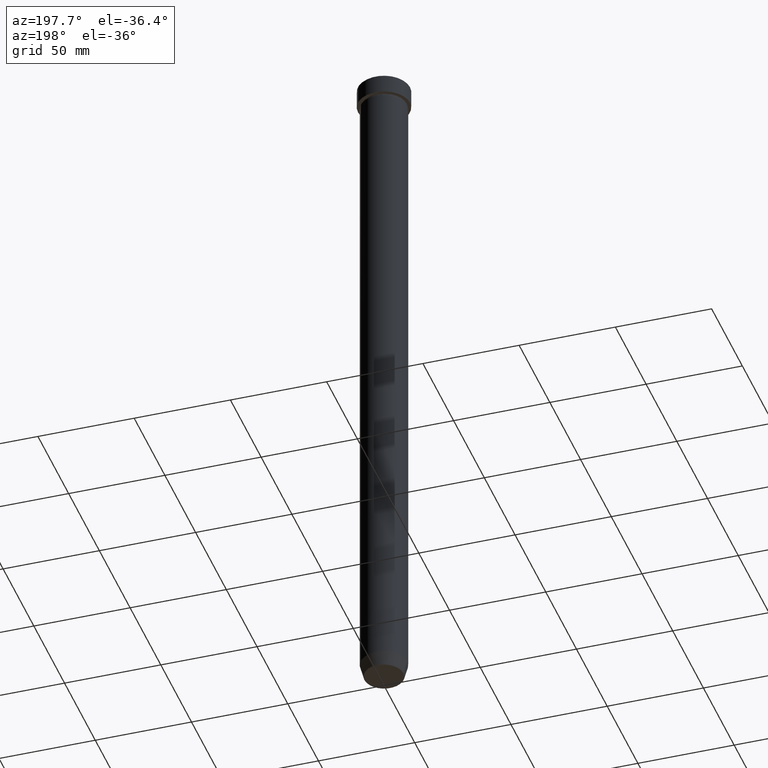
[diagram: clean part render]
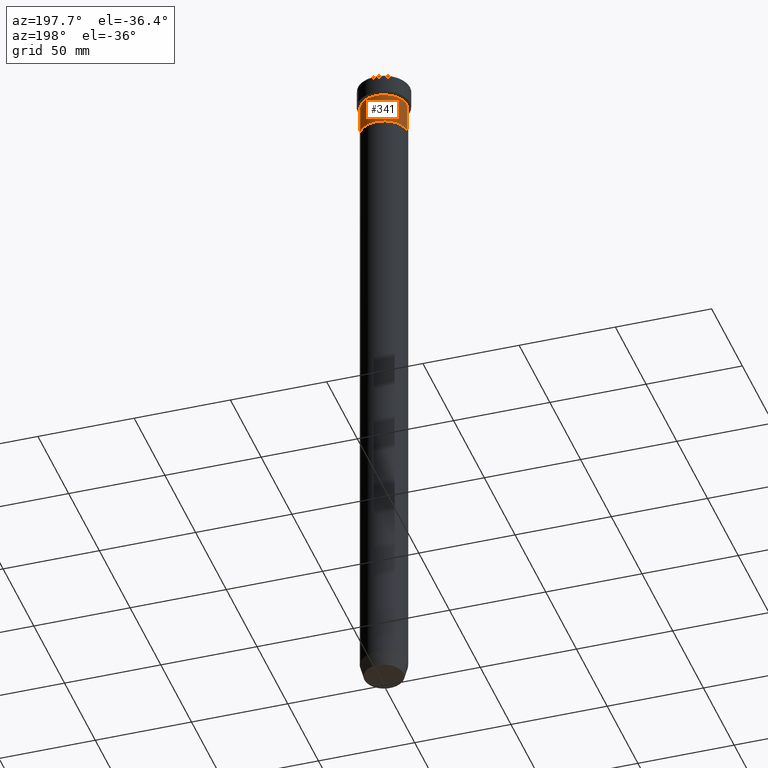
[diagram: same view with one face highlighted and labeled with its STEP entity id]
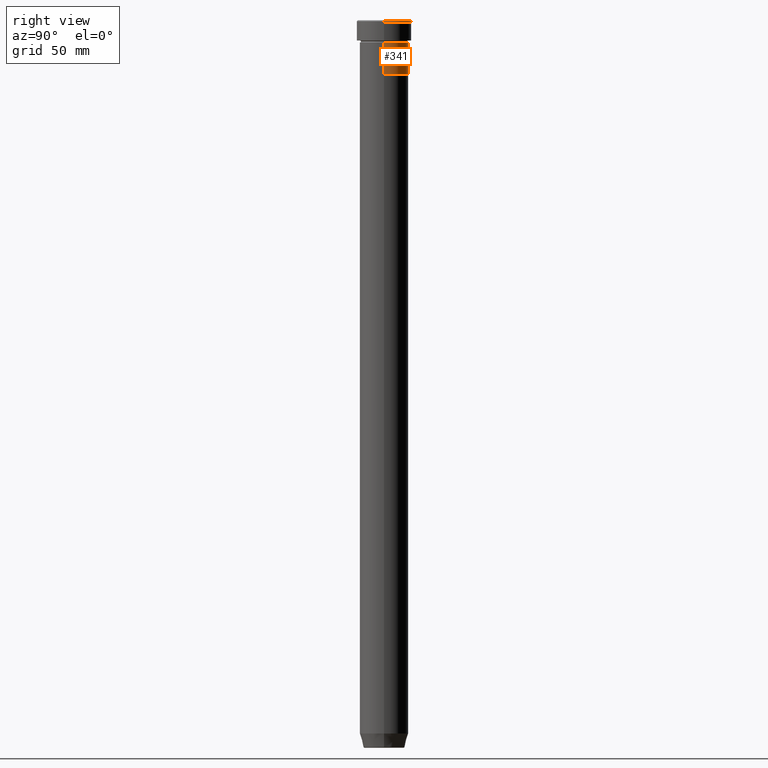
[diagram: same view with one face highlighted and labeled with its STEP entity id]
A machine part, auxiliary view. The second image highlights one B-rep face of the part: STEP entity #341.
A second angle (right view) of the same face is appended — the face is thin or edge-on in the first view.
In plain terms, the highlighted cylindrical surface (edge-blend (fillet) strip) has radius 12 mm, axis along (-0, -0, 1).
Its self-contained STEP definition (entity closure, byte-faithful):
#2 = CARTESIAN_POINT ( 'NONE',  ( 0.000000000000000000, 0.000000000000000000, -27.00000000000000000 ) ) ;
#8 = DIRECTION ( 'NONE',  ( -0.000000000000000000, -0.000000000000000000, 1.000000000000000000 ) ) ;
#59 = CARTESIAN_POINT ( 'NONE',  ( 12.00000000000000000, 0.000000000000000000, 0.000000000000000000 ) ) ;
#66 = ORIENTED_EDGE ( 'NONE', *, *, #87, .T. ) ;
#70 = VERTEX_POINT ( 'NONE', #240 ) ;
#87 = EDGE_CURVE ( 'NONE', #215, #135, #290, .T. ) ;
#108 = ORIENTED_EDGE ( 'NONE', *, *, #134, .F. ) ;
#111 = CARTESIAN_POINT ( 'NONE',  ( -12.00000000000000000, 1.469576158976823947E-15, -11.00000000000000000 ) ) ;
#123 = CARTESIAN_POINT ( 'NONE',  ( 12.00000000000000000, 0.000000000000000000, -27.00000000000000000 ) ) ;
#134 = EDGE_CURVE ( 'NONE', #70, #187, #325, .T. ) ;
#135 = VERTEX_POINT ( 'NONE', #587 ) ;
#146 = VECTOR ( 'NONE', #567, 1000.000000000000000 ) ;
#187 = VERTEX_POINT ( 'NONE', #111 ) ;
#197 = CARTESIAN_POINT ( 'NONE',  ( -12.00000000000000000, 1.469576158976823947E-15, 0.000000000000000000 ) ) ;
#205 = DIRECTION ( 'NONE',  ( -0.000000000000000000, -0.000000000000000000, 1.000000000000000000 ) ) ;
#214 = AXIS2_PLACEMENT_3D ( 'NONE', #2, #556, #337 ) ;
#215 = VERTEX_POINT ( 'NONE', #123 ) ;
#228 = CYLINDRICAL_SURFACE ( 'NONE', #277, 12.00000000000000000 ) ;
#240 = CARTESIAN_POINT ( 'NONE',  ( 12.00000000000000000, 0.000000000000000000, -11.00000000000000000 ) ) ;
#277 = AXIS2_PLACEMENT_3D ( 'NONE', #283, #8, #382 ) ;
#281 = EDGE_LOOP ( 'NONE', ( #66, #445, #108, #529 ) ) ;
#283 = CARTESIAN_POINT ( 'NONE',  ( 0.000000000000000000, 0.000000000000000000, 0.000000000000000000 ) ) ;
#290 = CIRCLE ( 'NONE', #214, 12.00000000000000000 ) ;
#325 = CIRCLE ( 'NONE', #357, 12.00000000000000000 ) ;
#332 = FACE_OUTER_BOUND ( 'NONE', #281, .T. ) ;
#337 = DIRECTION ( 'NONE',  ( 1.000000000000000000, 0.000000000000000000, 0.000000000000000000 ) ) ;
#341 = ADVANCED_FACE ( 'NONE', ( #332 ), #228, .T. ) ;
#357 = AXIS2_PLACEMENT_3D ( 'NONE', #441, #573, #448 ) ;
#359 = VECTOR ( 'NONE', #205, 1000.000000000000000 ) ;
#382 = DIRECTION ( 'NONE',  ( 1.000000000000000000, 0.000000000000000000, 0.000000000000000000 ) ) ;
#441 = CARTESIAN_POINT ( 'NONE',  ( 0.000000000000000000, 0.000000000000000000, -11.00000000000000000 ) ) ;
#445 = ORIENTED_EDGE ( 'NONE', *, *, #536, .T. ) ;
#448 = DIRECTION ( 'NONE',  ( 1.000000000000000000, 0.000000000000000000, 0.000000000000000000 ) ) ;
#471 = EDGE_CURVE ( 'NONE', #215, #70, #523, .T. ) ;
#523 = LINE ( 'NONE', #59, #146 ) ;
#527 = LINE ( 'NONE', #197, #359 ) ;
#529 = ORIENTED_EDGE ( 'NONE', *, *, #471, .F. ) ;
#536 = EDGE_CURVE ( 'NONE', #135, #187, #527, .T. ) ;
#556 = DIRECTION ( 'NONE',  ( -0.000000000000000000, -0.000000000000000000, 1.000000000000000000 ) ) ;
#567 = DIRECTION ( 'NONE',  ( -0.000000000000000000, -0.000000000000000000, 1.000000000000000000 ) ) ;
#573 = DIRECTION ( 'NONE',  ( -0.000000000000000000, -0.000000000000000000, 1.000000000000000000 ) ) ;
#587 = CARTESIAN_POINT ( 'NONE',  ( -12.00000000000000000, 1.469576158976823947E-15, -27.00000000000000000 ) ) ;